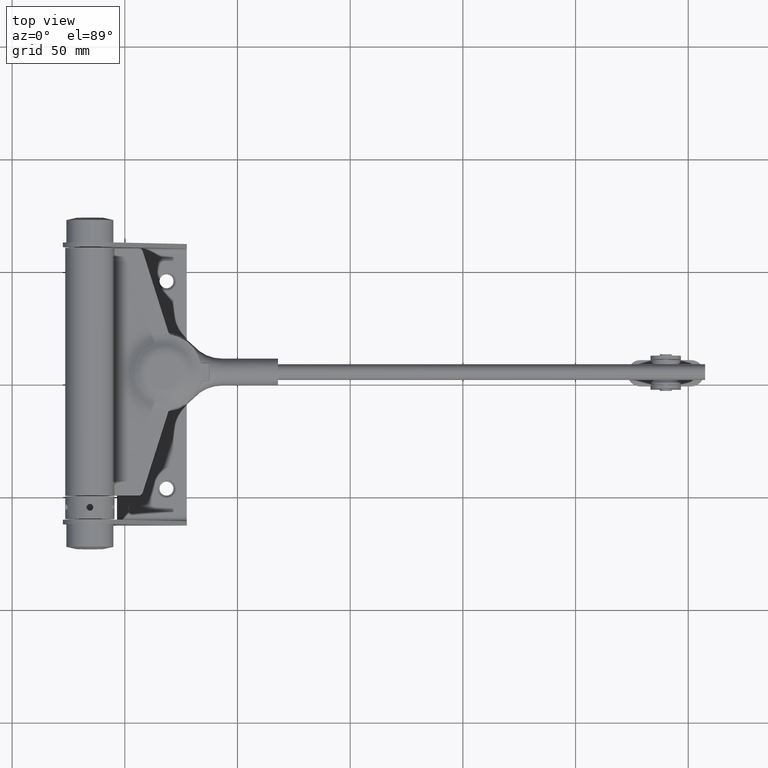
[diagram: clean part render]
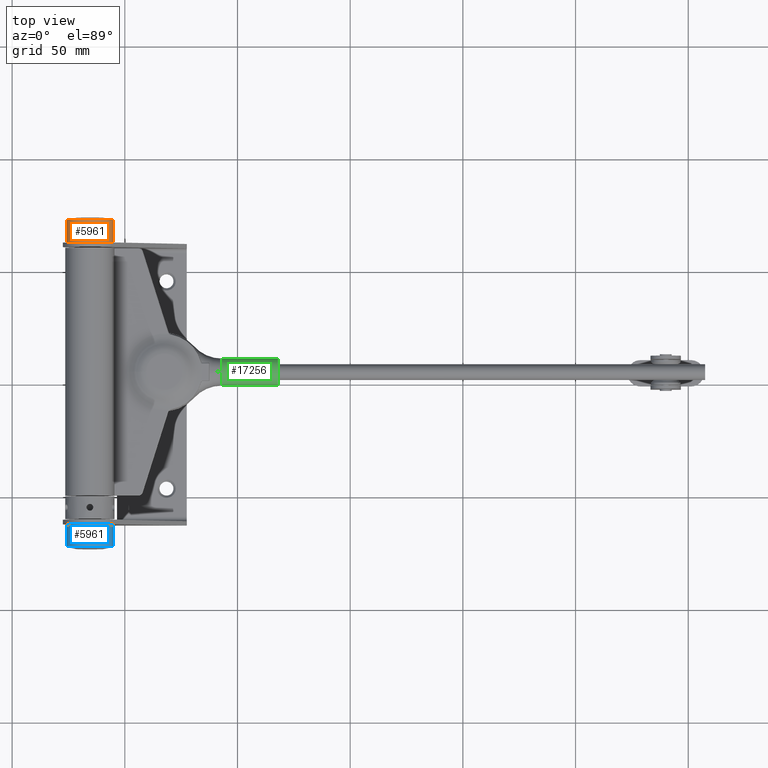
[diagram: same view with three faces highlighted in distinct colors, each labeled with its STEP entity id]
A machine part, top view with three faces highlighted in distinct colors.
Their STEP definitions:

[orange] entity #5961 — the highlighted cylindrical surface (bore or boss wall) has radius 10.5 mm, axis along (0, -1, -0).
#828 = VERTEX_POINT ( 'NONE', #15693 ) ;
#1897 = FACE_OUTER_BOUND ( 'NONE', #15514, .T. ) ;
#4599 = CARTESIAN_POINT ( 'NONE',  ( 0.000000000000000000, 2.155317462218358237E-46, -10.50000000000014033 ) ) ;
#5031 = ORIENTED_EDGE ( 'NONE', *, *, #18727, .F. ) ;
#5164 = EDGE_LOOP ( 'NONE', ( #19701 ) ) ;
#5866 = CIRCLE ( 'NONE', #17620, 10.50000000000013856 ) ;
#5961 = ADVANCED_FACE ( 'NONE', ( #1897, #16099 ), #18683, .T. ) ;
#7415 = DIRECTION ( 'NONE',  ( 0.000000000000000000, 0.000000000000000000, -1.000000000000000000 ) ) ;
#8359 = CARTESIAN_POINT ( 'NONE',  ( 0.000000000000000000, 0.000000000000000000, 0.000000000000000000 ) ) ;
#9331 = DIRECTION ( 'NONE',  ( 0.000000000000000000, -1.000000000000000000, 2.052683297350817681E-47 ) ) ;
#10909 = AXIS2_PLACEMENT_3D ( 'NONE', #8359, #17622, #21083 ) ;
#11828 = CIRCLE ( 'NONE', #12871, 10.50000000000014033 ) ;
#12871 = AXIS2_PLACEMENT_3D ( 'NONE', #18461, #9331, #20294 ) ;
#13180 = EDGE_CURVE ( 'NONE', #828, #828, #5866, .T. ) ;
#14533 = CARTESIAN_POINT ( 'NONE',  ( 0.000000000000000000, 9.999999999999994671, 0.000000000000000000 ) ) ;
#15514 = EDGE_LOOP ( 'NONE', ( #5031 ) ) ;
#15693 = CARTESIAN_POINT ( 'NONE',  ( 0.000000000000000000, 9.999999999999994671, -10.50000000000013856 ) ) ;
#16099 = FACE_OUTER_BOUND ( 'NONE', #5164, .T. ) ;
#17620 = AXIS2_PLACEMENT_3D ( 'NONE', #14533, #20303, #7415 ) ;
#17622 = DIRECTION ( 'NONE',  ( 0.000000000000000000, -1.000000000000000000, 2.052683297350817681E-47 ) ) ;
#18461 = CARTESIAN_POINT ( 'NONE',  ( 0.000000000000000000, 0.000000000000000000, 0.000000000000000000 ) ) ;
#18683 = CYLINDRICAL_SURFACE ( 'NONE', #10909, 10.50000000000013856 ) ;
#18727 = EDGE_CURVE ( 'NONE', #20175, #20175, #11828, .T. ) ;
#19701 = ORIENTED_EDGE ( 'NONE', *, *, #13180, .T. ) ;
#20175 = VERTEX_POINT ( 'NONE', #4599 ) ;
#20294 = DIRECTION ( 'NONE',  ( 0.000000000000000000, 2.052683297350789969E-47, -1.000000000000000000 ) ) ;
#20303 = DIRECTION ( 'NONE',  ( 0.000000000000000000, -1.000000000000000000, 2.052683297350817681E-47 ) ) ;
#21083 = DIRECTION ( 'NONE',  ( 0.000000000000000000, 2.052683297350789969E-47, -1.000000000000000000 ) ) ;

[blue] entity #5961 — the highlighted cylindrical surface (bore or boss wall) has radius 10.5 mm, axis along (0, 1, 0).
#828 = VERTEX_POINT ( 'NONE', #15693 ) ;
#1897 = FACE_OUTER_BOUND ( 'NONE', #15514, .T. ) ;
#4599 = CARTESIAN_POINT ( 'NONE',  ( 0.000000000000000000, 2.155317462218358237E-46, -10.50000000000014033 ) ) ;
#5031 = ORIENTED_EDGE ( 'NONE', *, *, #18727, .F. ) ;
#5164 = EDGE_LOOP ( 'NONE', ( #19701 ) ) ;
#5866 = CIRCLE ( 'NONE', #17620, 10.50000000000013856 ) ;
#5961 = ADVANCED_FACE ( 'NONE', ( #1897, #16099 ), #18683, .T. ) ;
#7415 = DIRECTION ( 'NONE',  ( 0.000000000000000000, 0.000000000000000000, -1.000000000000000000 ) ) ;
#8359 = CARTESIAN_POINT ( 'NONE',  ( 0.000000000000000000, 0.000000000000000000, 0.000000000000000000 ) ) ;
#9331 = DIRECTION ( 'NONE',  ( 0.000000000000000000, -1.000000000000000000, 2.052683297350817681E-47 ) ) ;
#10909 = AXIS2_PLACEMENT_3D ( 'NONE', #8359, #17622, #21083 ) ;
#11828 = CIRCLE ( 'NONE', #12871, 10.50000000000014033 ) ;
#12871 = AXIS2_PLACEMENT_3D ( 'NONE', #18461, #9331, #20294 ) ;
#13180 = EDGE_CURVE ( 'NONE', #828, #828, #5866, .T. ) ;
#14533 = CARTESIAN_POINT ( 'NONE',  ( 0.000000000000000000, 9.999999999999994671, 0.000000000000000000 ) ) ;
#15514 = EDGE_LOOP ( 'NONE', ( #5031 ) ) ;
#15693 = CARTESIAN_POINT ( 'NONE',  ( 0.000000000000000000, 9.999999999999994671, -10.50000000000013856 ) ) ;
#16099 = FACE_OUTER_BOUND ( 'NONE', #5164, .T. ) ;
#17620 = AXIS2_PLACEMENT_3D ( 'NONE', #14533, #20303, #7415 ) ;
#17622 = DIRECTION ( 'NONE',  ( 0.000000000000000000, -1.000000000000000000, 2.052683297350817681E-47 ) ) ;
#18461 = CARTESIAN_POINT ( 'NONE',  ( 0.000000000000000000, 0.000000000000000000, 0.000000000000000000 ) ) ;
#18683 = CYLINDRICAL_SURFACE ( 'NONE', #10909, 10.50000000000013856 ) ;
#18727 = EDGE_CURVE ( 'NONE', #20175, #20175, #11828, .T. ) ;
#19701 = ORIENTED_EDGE ( 'NONE', *, *, #13180, .T. ) ;
#20175 = VERTEX_POINT ( 'NONE', #4599 ) ;
#20294 = DIRECTION ( 'NONE',  ( 0.000000000000000000, 2.052683297350789969E-47, -1.000000000000000000 ) ) ;
#20303 = DIRECTION ( 'NONE',  ( 0.000000000000000000, -1.000000000000000000, 2.052683297350817681E-47 ) ) ;
#21083 = DIRECTION ( 'NONE',  ( 0.000000000000000000, 2.052683297350789969E-47, -1.000000000000000000 ) ) ;

[green] entity #17256 — the highlighted cylindrical surface (edge-blend (fillet) strip) has radius 6 mm, axis along (-1, -0, -0).
#227 = LINE ( 'NONE', #16642, #21287 ) ;
#409 = DIRECTION ( 'NONE',  ( 1.109335647967034189E-30, 0.000000000000000000, -1.000000000000000000 ) ) ;
#443 = AXIS2_PLACEMENT_3D ( 'NONE', #10897, #11051, #12683 ) ;
#823 = DIRECTION ( 'NONE',  ( -3.262639632681916544E-17, 0.000000000000000000, 1.000000000000000000 ) ) ;
#1475 = CARTESIAN_POINT ( 'NONE',  ( 5.999999999999997335, -3.499999999999999556, 25.50000000000041211 ) ) ;
#1636 = DIRECTION ( 'NONE',  ( 1.387778780781416093E-16, 0.000000000000000000, 1.000000000000000000 ) ) ;
#1769 = EDGE_LOOP ( 'NONE', ( #14470, #10760, #11674, #2005, #14509 ) ) ;
#1993 = DIRECTION ( 'NONE',  ( -1.000000000000000000, 0.000000000000000000, 0.000000000000000000 ) ) ;
#2005 = ORIENTED_EDGE ( 'NONE', *, *, #3263, .T. ) ;
#2434 = CARTESIAN_POINT ( 'NONE',  ( 6.000000000000004441, -3.499999999999999556, 50.50000000000064659 ) ) ;
#2556 = VERTEX_POINT ( 'NONE', #15897 ) ;
#2780 = CARTESIAN_POINT ( 'NONE',  ( -4.336808689942017736E-15, -3.499999999999999556, 25.50000000000041211 ) ) ;
#2841 = AXIS2_PLACEMENT_3D ( 'NONE', #16486, #409, #1993 ) ;
#3263 = EDGE_CURVE ( 'NONE', #2556, #6607, #19148, .T. ) ;
#4456 = EDGE_CURVE ( 'NONE', #6607, #6405, #227, .T. ) ;
#5260 = VERTEX_POINT ( 'NONE', #2434 ) ;
#6405 = VERTEX_POINT ( 'NONE', #8904 ) ;
#6584 = AXIS2_PLACEMENT_3D ( 'NONE', #2780, #823, #13374 ) ;
#6607 = VERTEX_POINT ( 'NONE', #7546 ) ;
#7032 = CARTESIAN_POINT ( 'NONE',  ( 6.000000000000000888, -3.499999999999999556, 25.50000000000041211 ) ) ;
#7523 = DIRECTION ( 'NONE',  ( -1.000000000000000000, 0.000000000000000000, 0.000000000000000000 ) ) ;
#7546 = CARTESIAN_POINT ( 'NONE',  ( -5.999999999999999112, -3.499999999999999556, 25.50000000000041211 ) ) ;
#8904 = CARTESIAN_POINT ( 'NONE',  ( -6.000000000000008882, -3.499999999999999556, 50.50000000000064659 ) ) ;
#9033 = VECTOR ( 'NONE', #1636, 1000.000000000000000 ) ;
#9487 = LINE ( 'NONE', #7032, #9033 ) ;
#10760 = ORIENTED_EDGE ( 'NONE', *, *, #13150, .F. ) ;
#10897 = CARTESIAN_POINT ( 'NONE',  ( 3.469446951953614189E-15, -3.499999999999999556, 25.50000000000041211 ) ) ;
#11051 = DIRECTION ( 'NONE',  ( -1.387778780781416093E-16, 0.000000000000000000, -1.000000000000000000 ) ) ;
#11674 = ORIENTED_EDGE ( 'NONE', *, *, #20898, .F. ) ;
#12555 = FACE_OUTER_BOUND ( 'NONE', #1769, .T. ) ;
#12683 = DIRECTION ( 'NONE',  ( -1.000000000000000000, 0.000000000000000000, 0.000000000000000000 ) ) ;
#13126 = DIRECTION ( 'NONE',  ( -1.714042744049619026E-16, 0.000000000000000000, 1.000000000000000000 ) ) ;
#13150 = EDGE_CURVE ( 'NONE', #15101, #5260, #9487, .T. ) ;
#13374 = DIRECTION ( 'NONE',  ( 1.000000000000000000, 0.000000000000000000, 0.000000000000000000 ) ) ;
#14470 = ORIENTED_EDGE ( 'NONE', *, *, #21687, .F. ) ;
#14509 = ORIENTED_EDGE ( 'NONE', *, *, #4456, .T. ) ;
#15101 = VERTEX_POINT ( 'NONE', #1475 ) ;
#15897 = CARTESIAN_POINT ( 'NONE',  ( 0.000000000000000000, 2.500000000000161648, 25.50000000000041211 ) ) ;
#16486 = CARTESIAN_POINT ( 'NONE',  ( 3.469446951953614189E-15, -3.499999999999999556, 25.50000000000041211 ) ) ;
#16642 = CARTESIAN_POINT ( 'NONE',  ( -6.000000000000004441, -3.499999999999999556, 25.50000000000041211 ) ) ;
#16735 = AXIS2_PLACEMENT_3D ( 'NONE', #20323, #22243, #7523 ) ;
#17256 = ADVANCED_FACE ( 'NONE', ( #12555 ), #22834, .T. ) ;
#17927 = CIRCLE ( 'NONE', #16735, 6.000000000000000000 ) ;
#18230 = CIRCLE ( 'NONE', #2841, 6.000000000000000000 ) ;
#19148 = CIRCLE ( 'NONE', #6584, 6.000000000000000000 ) ;
#20323 = CARTESIAN_POINT ( 'NONE',  ( 6.938893903907228378E-15, -3.499999999999999556, 50.50000000000064659 ) ) ;
#20898 = EDGE_CURVE ( 'NONE', #2556, #15101, #18230, .T. ) ;
#21287 = VECTOR ( 'NONE', #13126, 1000.000000000000000 ) ;
#21687 = EDGE_CURVE ( 'NONE', #5260, #6405, #17927, .T. ) ;
#22243 = DIRECTION ( 'NONE',  ( -1.109335647967034189E-30, -0.000000000000000000, 1.000000000000000000 ) ) ;
#22834 = CYLINDRICAL_SURFACE ( 'NONE', #443, 6.000000000000000000 ) ;